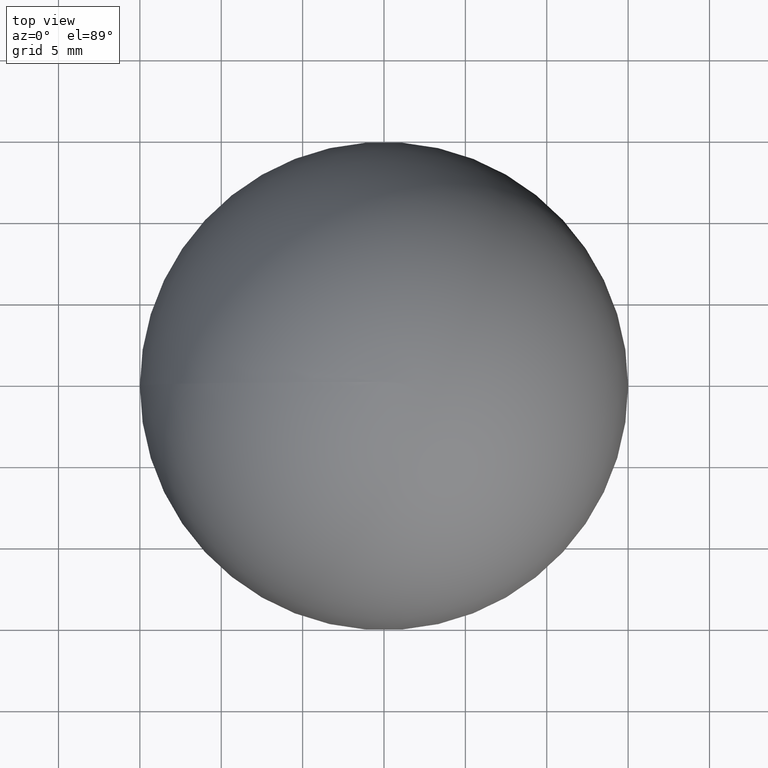
[diagram: clean part render]
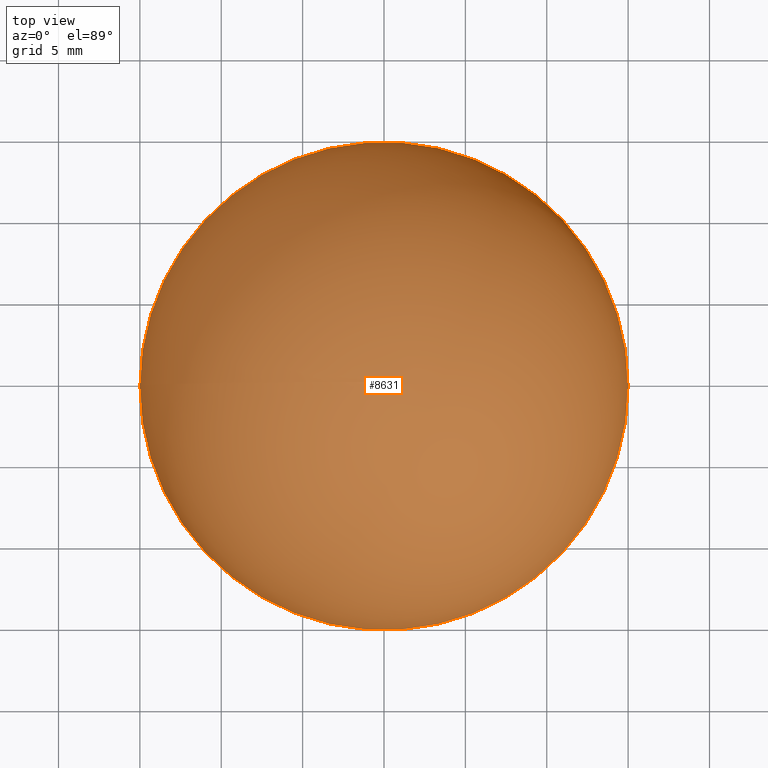
[diagram: same view with one face highlighted and labeled with its STEP entity id]
A machine part, top view. The second image highlights one B-rep face of the part: STEP entity #8631.
In plain terms, the highlighted spherical surface has radius 15 mm.
Its self-contained STEP definition (entity closure, byte-faithful):
#224 = CARTESIAN_POINT ( 'NONE',  ( 0.000000000000000000, 0.000000000000000000, 0.000000000000000000 ) ) ;
#1126 = DIRECTION ( 'NONE',  ( -1.000000000000000000, 0.000000000000000000, -6.982962677686266711E-15 ) ) ;
#1404 = EDGE_CURVE ( 'NONE', #7212, #6662, #2260, .T. ) ;
#2096 = DIRECTION ( 'NONE',  ( -1.000000000000000000, 0.000000000000000000, -6.982962677686266711E-15 ) ) ;
#2153 = FACE_OUTER_BOUND ( 'NONE', #7652, .T. ) ;
#2260 = CIRCLE ( 'NONE', #6034, 15.00000000000000000 ) ;
#3401 = CIRCLE ( 'NONE', #4654, 15.00000000000000000 ) ;
#3820 = CARTESIAN_POINT ( 'NONE',  ( 15.00000000000000000, 1.836970198721029589E-15, 1.047444401652940007E-13 ) ) ;
#4344 = SPHERICAL_SURFACE ( 'NONE', #5913, 15.00000000000000000 ) ;
#4654 = AXIS2_PLACEMENT_3D ( 'NONE', #224, #9015, #2096 ) ;
#5429 = EDGE_CURVE ( 'NONE', #6662, #7212, #3401, .T. ) ;
#5857 = ORIENTED_EDGE ( 'NONE', *, *, #1404, .F. ) ;
#5913 = AXIS2_PLACEMENT_3D ( 'NONE', #9052, #9902, #8273 ) ;
#6034 = AXIS2_PLACEMENT_3D ( 'NONE', #7187, #6345, #1126 ) ;
#6345 = DIRECTION ( 'NONE',  ( 6.982962677686266711E-15, 0.000000000000000000, -1.000000000000000000 ) ) ;
#6662 = VERTEX_POINT ( 'NONE', #3820 ) ;
#6688 = ORIENTED_EDGE ( 'NONE', *, *, #5429, .F. ) ;
#7187 = CARTESIAN_POINT ( 'NONE',  ( 0.000000000000000000, 0.000000000000000000, 0.000000000000000000 ) ) ;
#7212 = VERTEX_POINT ( 'NONE', #9010 ) ;
#7652 = EDGE_LOOP ( 'NONE', ( #5857, #6688 ) ) ;
#8273 = DIRECTION ( 'NONE',  ( -1.000000000000000000, 0.000000000000000000, -6.982962677686266711E-15 ) ) ;
#8631 = ADVANCED_FACE ( 'NONE', ( #2153 ), #4344, .T. ) ;
#9010 = CARTESIAN_POINT ( 'NONE',  ( -15.00000000000000000, 0.000000000000000000, -1.047444401652940007E-13 ) ) ;
#9015 = DIRECTION ( 'NONE',  ( 6.982962677686266711E-15, 0.000000000000000000, -1.000000000000000000 ) ) ;
#9052 = CARTESIAN_POINT ( 'NONE',  ( 0.000000000000000000, 0.000000000000000000, 0.000000000000000000 ) ) ;
#9902 = DIRECTION ( 'NONE',  ( -6.982962677686266711E-15, 0.000000000000000000, 1.000000000000000000 ) ) ;